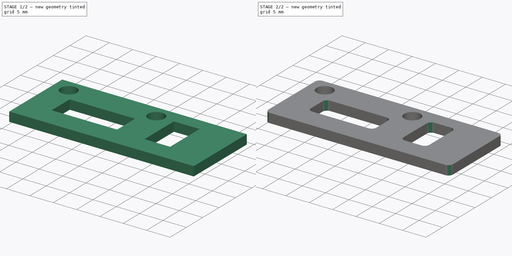
[diagram: build sequence overview — one tinted view per stage of 2, left to right]
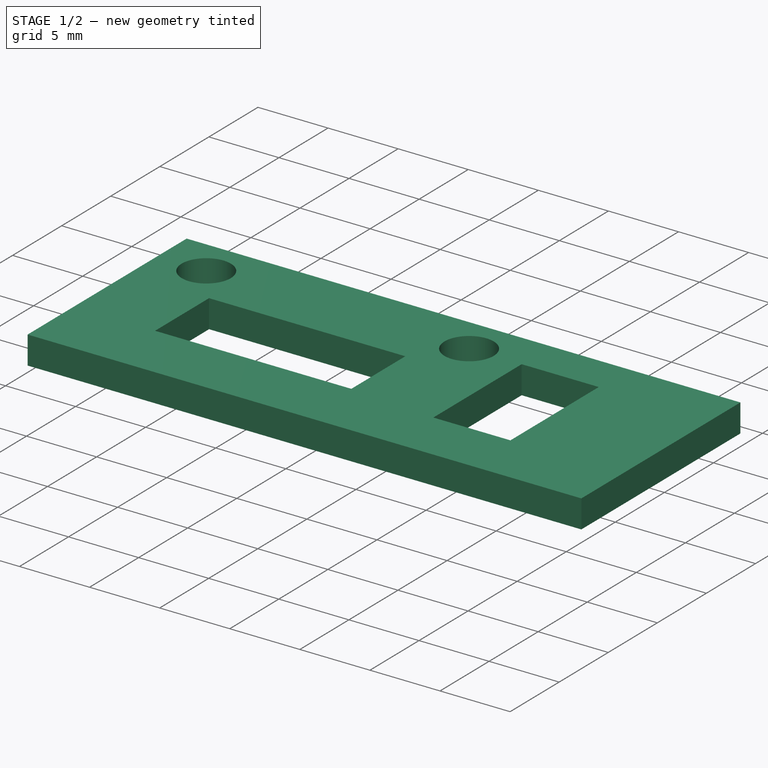
[diagram: stage 1 of 2 — iso view after this stage's code; geometry added in this stage tinted green]
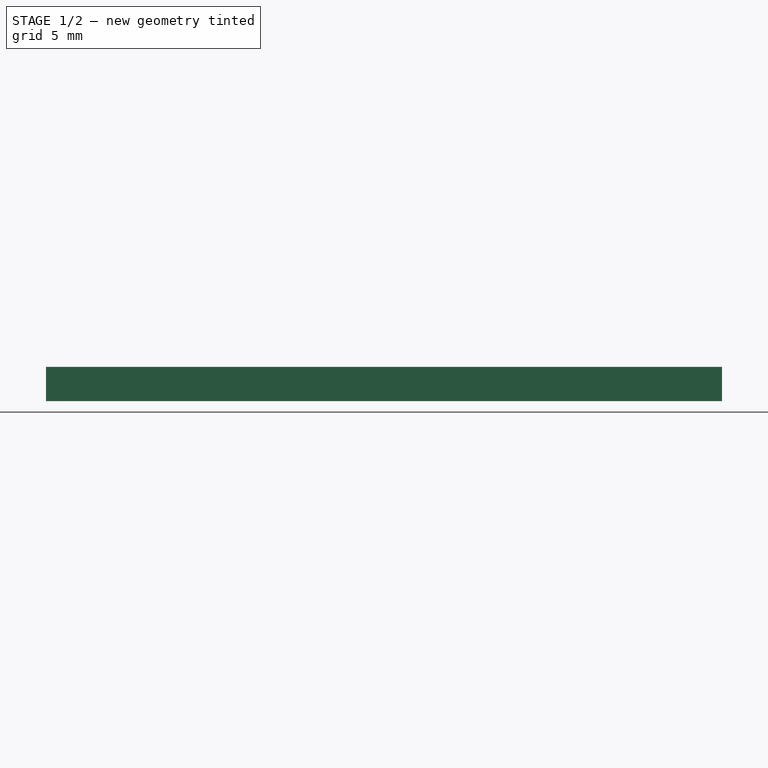
[diagram: stage 1 of 2 — front view after this stage's code; geometry added in this stage tinted green]
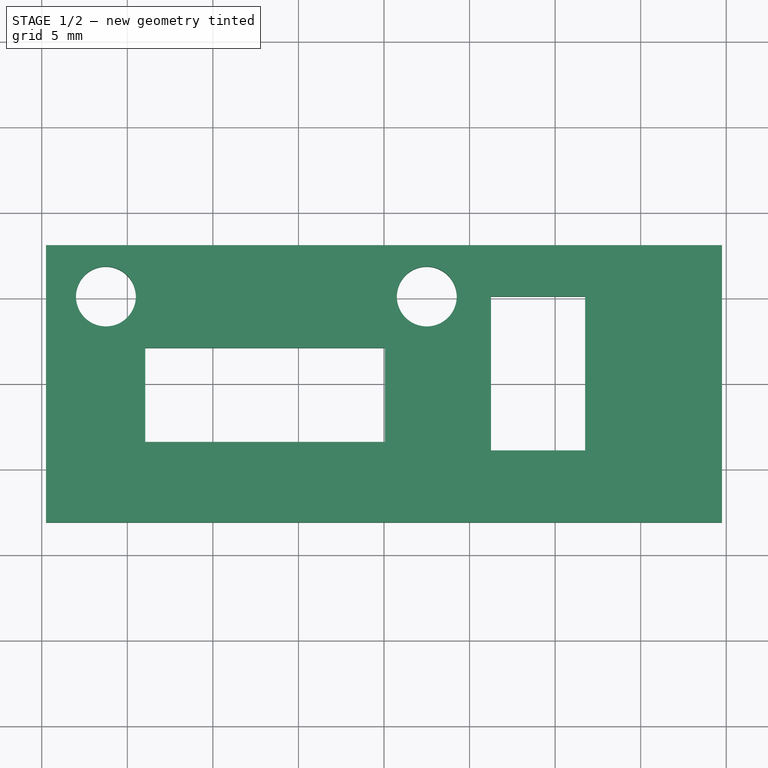
[diagram: stage 1 of 2 — top view after this stage's code; geometry added in this stage tinted green]
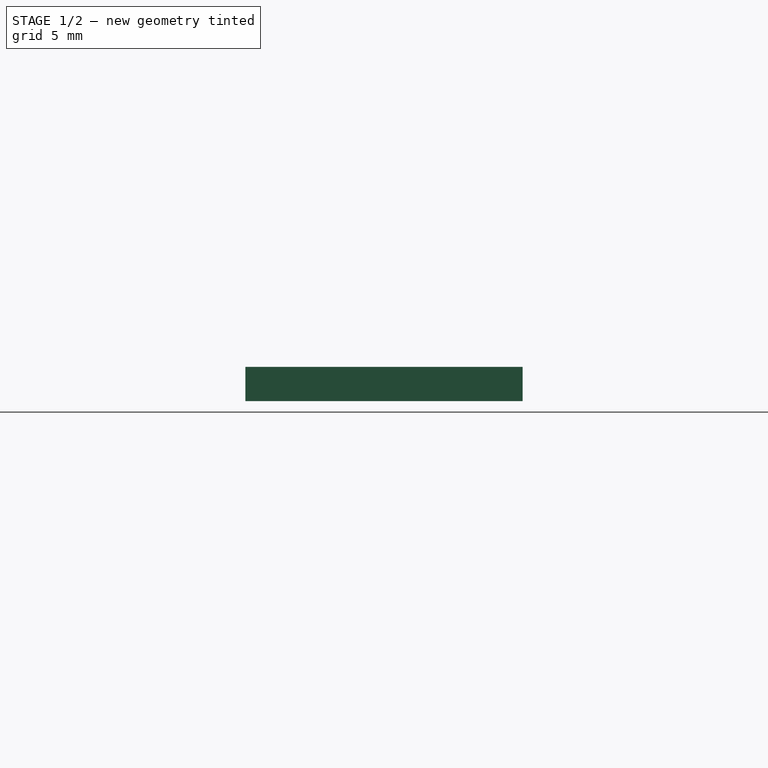
[diagram: stage 1 of 2 — right view after this stage's code; geometry added in this stage tinted green]
FCSTD DOCUMENT  (FreeCAD 0.14R3310 (Git))
Label: 31. SUPLEMENTO AISLANTE MICRO_001
License: CC-BY 3.0
LicenseURL: http://creativecommons.org/licenses/by/3.0/
objects: Sketcher::SketchObject×1, PartDesign::Pad×1, PartDesign::Fillet×1
note: 4 computed .brp shape members not serialized (recipe doc carries the construction recipe); baked Part::Feature solids carry a one-line shape summary decoded from their .brp

FEATURE [Sketcher::SketchObject] Sketch
  sketch-geometry (14):
    g0: LineSegment StartX=-19.75 StartY=8.1 StartZ=0 EndX=19.75 EndY=8.1 EndZ=0
    g1: LineSegment StartX=19.75 StartY=8.1 StartZ=0 EndX=19.75 EndY=-8.1 EndZ=0
    g2: LineSegment StartX=19.75 StartY=-8.1 StartZ=0 EndX=-19.75 EndY=-8.1 EndZ=0
    g3: LineSegment StartX=-19.75 StartY=-8.1 StartZ=0 EndX=-19.75 EndY=8.1 EndZ=0
    g4: LineSegment StartX=-13.95 StartY=2.1 StartZ=0 EndX=0.05 EndY=2.1 EndZ=0
    g5: LineSegment StartX=0.05 StartY=2.1 StartZ=0 EndX=0.05 EndY=-3.4 EndZ=0
    g6: LineSegment StartX=0.05 StartY=-3.4 StartZ=0 EndX=-13.95 EndY=-3.4 EndZ=0
    g7: LineSegment StartX=-13.95 StartY=-3.4 StartZ=0 EndX=-13.95 EndY=2.1 EndZ=0
    g8: LineSegment StartX=6.25 StartY=5.1 StartZ=0 EndX=11.75 EndY=5.1 EndZ=0
    g9: LineSegment StartX=11.75 StartY=5.1 StartZ=0 EndX=11.75 EndY=-3.9 EndZ=0
    g10: LineSegment StartX=11.75 StartY=-3.9 StartZ=0 EndX=6.25 EndY=-3.9 EndZ=0
    g11: LineSegment StartX=6.25 StartY=-3.9 StartZ=0 EndX=6.25 EndY=5.1 EndZ=0
    g12: Circle CenterX=-16.25 CenterY=5.1 CenterZ=0 NormalX=0 NormalY=0 NormalZ=1 Radius=1.75
    g13: Circle CenterX=2.5 CenterY=5.1 CenterZ=0 NormalX=0 NormalY=0 NormalZ=1 Radius=1.75
  constraints (41):
    c: Coincident(g0,g1)
    c: Coincident(g1,g2)
    c: Coincident(g2,g3)
    c: Coincident(g3,g0)
    c: Horizontal(g0)
    c: Horizontal(g2)
    c: Vertical(g1)
    c: Vertical(g3)
    c: Symmetric(g1,g0,g-1)
    c: Distance(g1) = 16.2
    c: Distance(g0) = 39.5
    c: Coincident(g4,g5)
    c: Coincident(g5,g6)
    c: Coincident(g6,g7)
    c: Coincident(g7,g4)
    c: Horizontal(g4)
    c: Horizontal(g6)
    c: Vertical(g5)
    c: Vertical(g7)
    c: Coincident(g8,g9)
    c: Coincident(g9,g10)
    c: Coincident(g10,g11)
    c: Coincident(g11,g8)
    c: Horizontal(g8)
    c: Horizontal(g10)
    c: Vertical(g9)
    c: Vertical(g11)
    c: Distance(g8) = 5.5
    c: Distance(g11) = 9
    c: Distance(g8,g0) = 3
    c: Distance(g8,g1) = 13.5
    c: Distance(g4,g3) = 5.8
    c: Distance(g4,g0) = 6
    c: Distance(g7) = 5.5
    c: Distance(g6) = 14
    c: Equal(g12,g13)
    c: Distance(g12,g13) = 18.75
    c: Distance(g12,g0) = 3
    c: Distance(g13,g0) = 3
    c: Distance(g12,g3) = 3.5
    c: Radius(g12) = 1.75
FEATURE [PartDesign::Pad] Pad
  Length = 2
  Length2 = 100
  Sketch = -> Sketch
  Type = 0
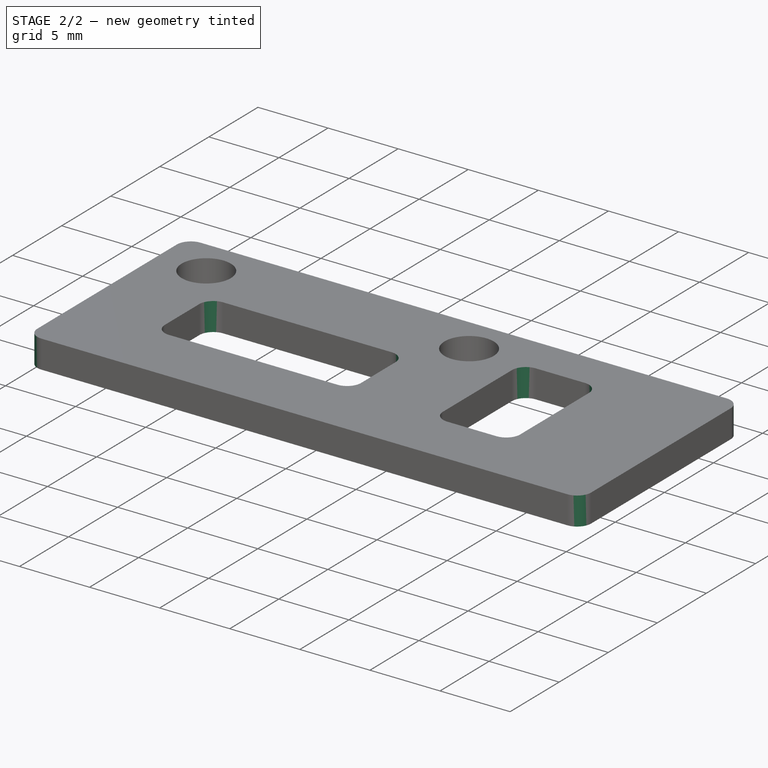
[diagram: stage 2 of 2 — iso view after this stage's code; geometry added in this stage tinted green]
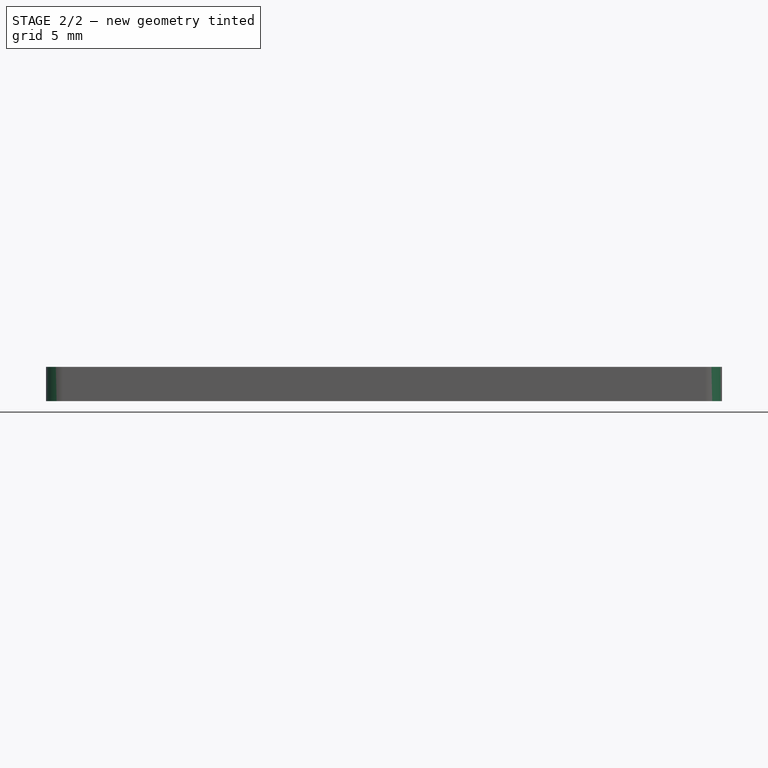
[diagram: stage 2 of 2 — front view after this stage's code; geometry added in this stage tinted green]
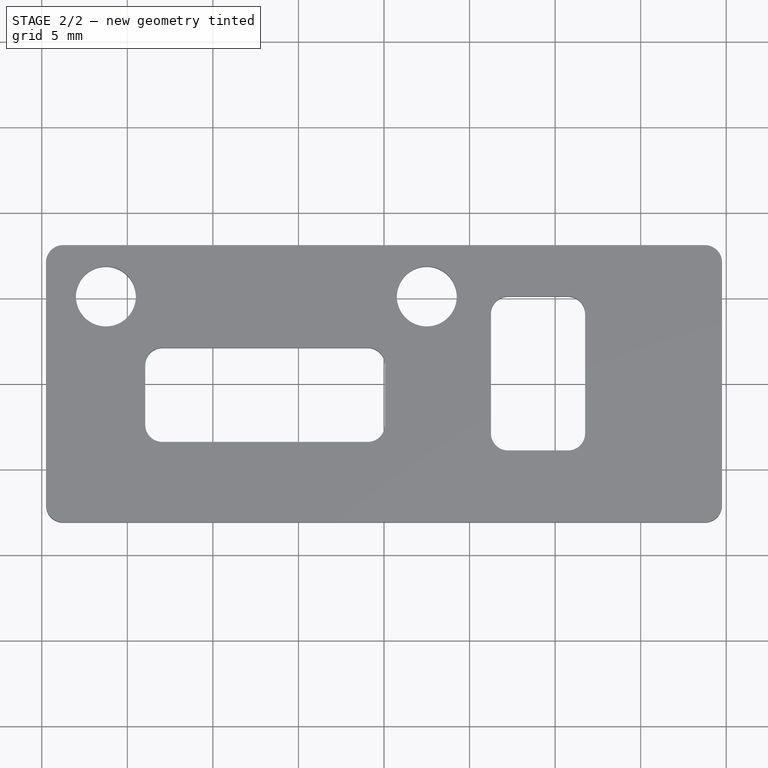
[diagram: stage 2 of 2 — top view after this stage's code; geometry added in this stage tinted green]
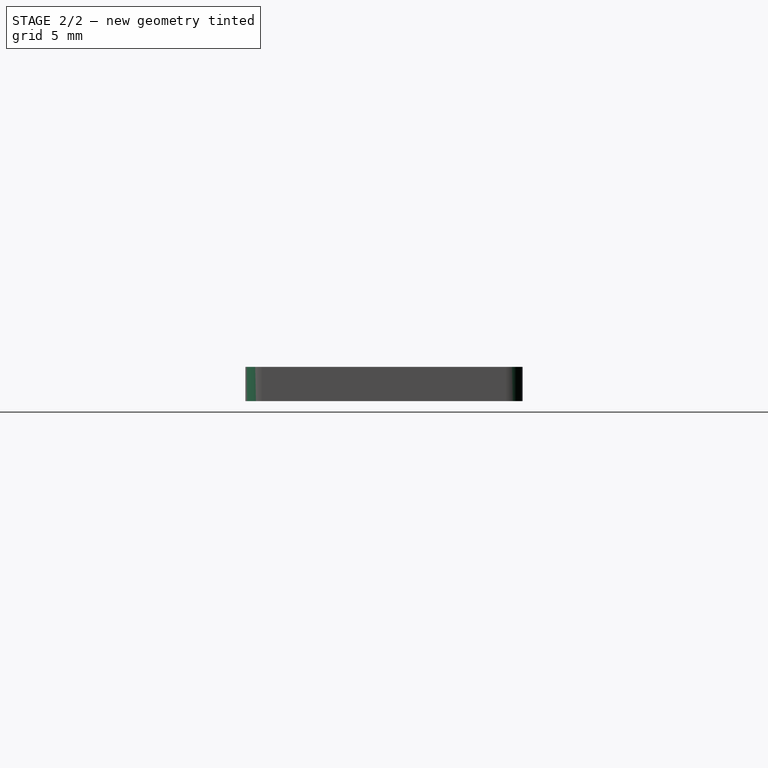
[diagram: stage 2 of 2 — right view after this stage's code; geometry added in this stage tinted green]
FEATURE [PartDesign::Fillet] Fillet
  Base = -> Pad [Edge1,Edge17,Edge29,Edge2,Edge8,Edge14,Edge26,Edge20,Edge32,Edge5,Edge25,Edge13]
  Radius = 1
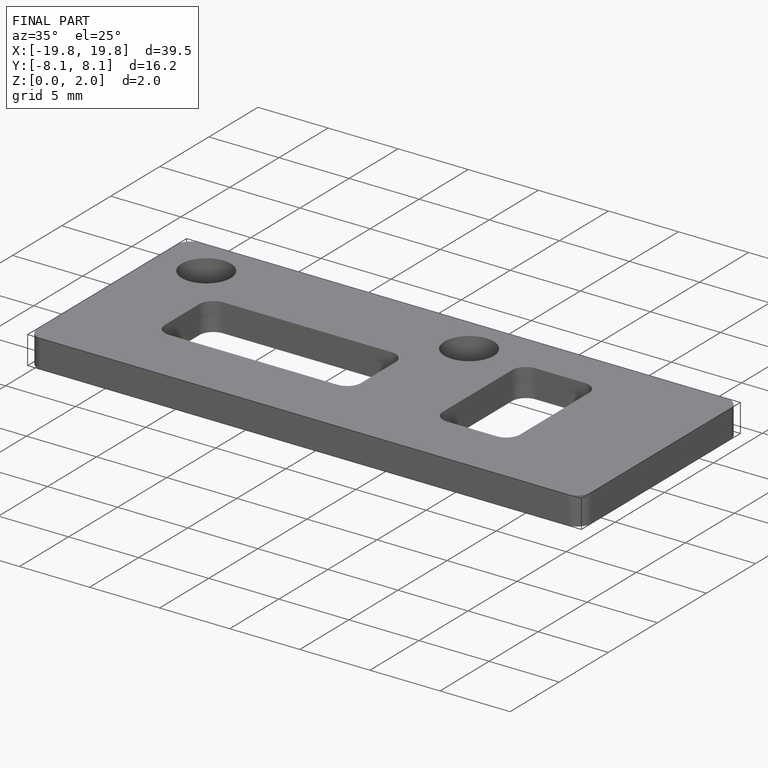
[diagram: finished part — iso view with bounding-box wireframe]
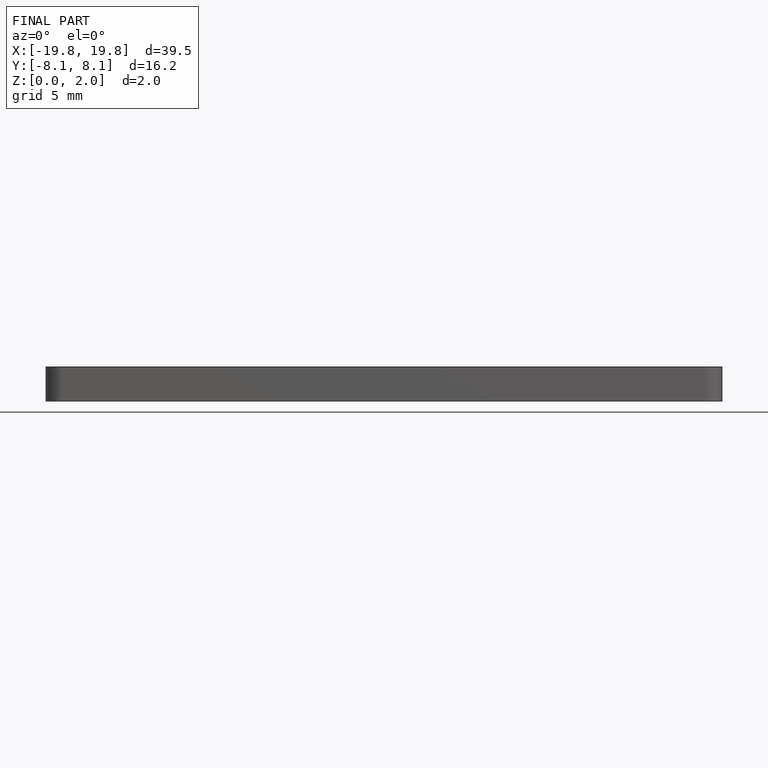
[diagram: finished part — front view with bounding-box wireframe]
